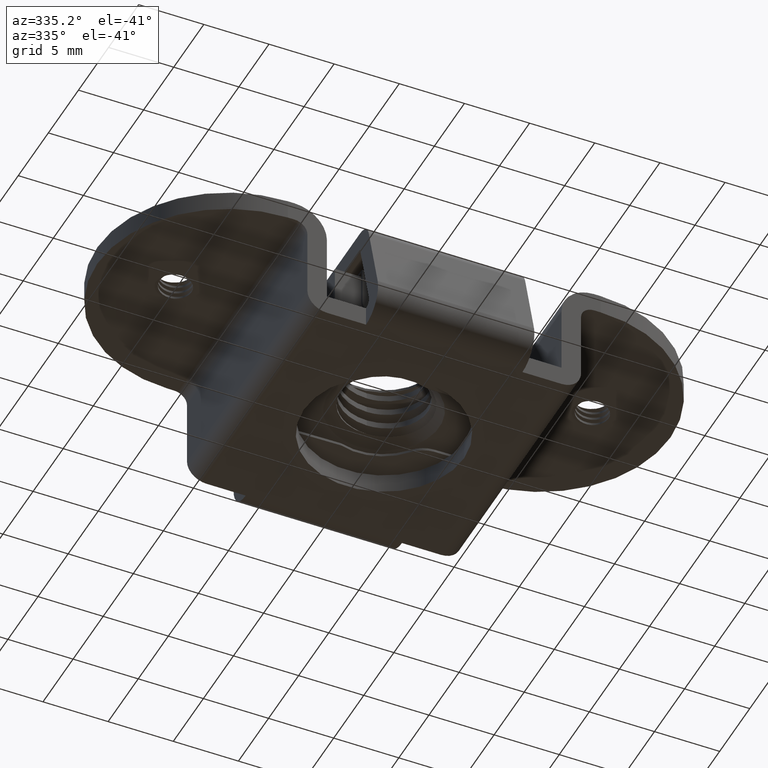
[diagram: clean part render]
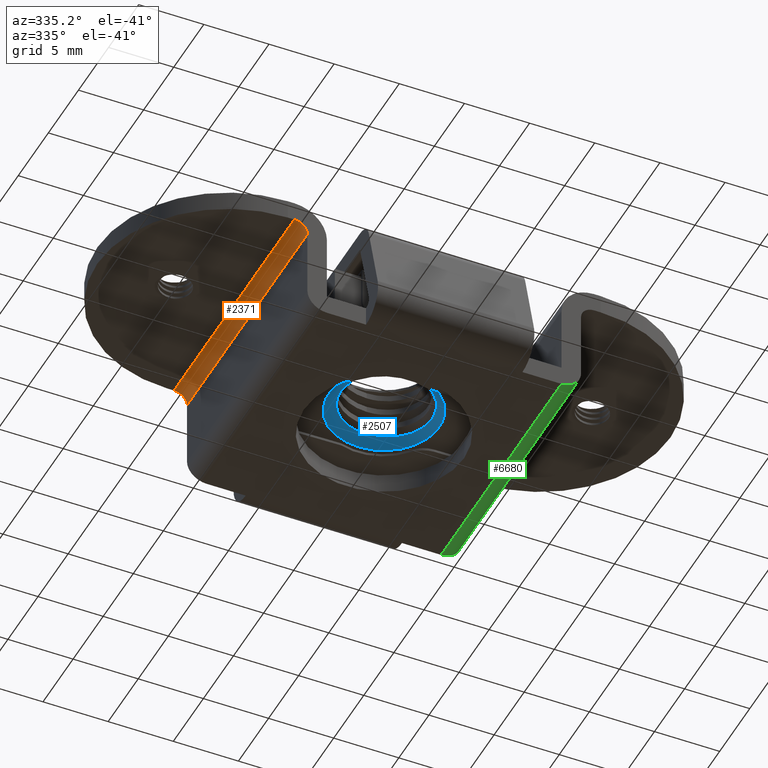
[diagram: same view with three faces highlighted in distinct colors, each labeled with its STEP entity id]
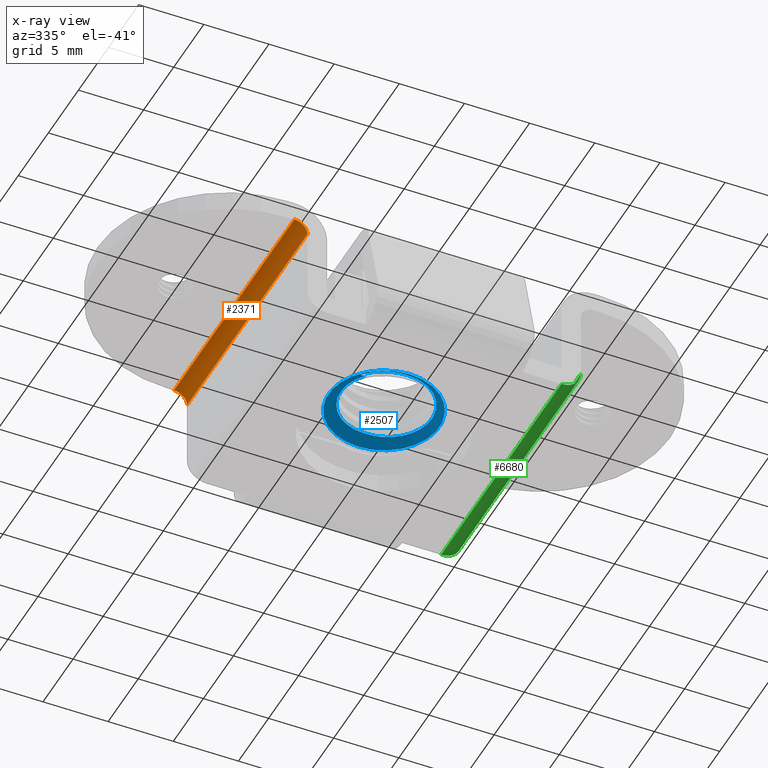
[diagram: x-ray of the same camera — body ghosted, the three highlighted faces saturated]
A machine part, auxiliary view with three faces highlighted in distinct colors.
The next image is the same camera in x-ray (body ghosted, the three faces saturated) — at least one of them is partly hidden behind the body in this view.
Their STEP definitions:

[orange] entity #2371 — the highlighted cylindrical surface (edge-blend (fillet) strip) has radius 1 mm, axis along (-0, 1, -0).
#301 = CIRCLE ( 'NONE', #5216, 1.000000000000000900 ) ;
#313 = EDGE_CURVE ( 'NONE', #5113, #4780, #1187, .T. ) ;
#360 = DIRECTION ( 'NONE',  ( 0.0000000000000000000, 1.000000000000000000, 0.0000000000000000000 ) ) ;
#366 = CARTESIAN_POINT ( 'NONE',  ( -11.50000000000000000, -10.00000000000000000, 7.699999999989020500 ) ) ;
#480 = CARTESIAN_POINT ( 'NONE',  ( -11.50000000000000000, -12.00000000000000000, 6.699999999988969900 ) ) ;
#649 = VECTOR ( 'NONE', #360, 1000.000000000000000 ) ;
#769 = ORIENTED_EDGE ( 'NONE', *, *, #1054, .T. ) ;
#979 = CYLINDRICAL_SURFACE ( 'NONE', #1028, 1.000000000000043500 ) ;
#1010 = DIRECTION ( 'NONE',  ( -0.7071055687592237000, 0.0000000000000000000, 0.7071079936117924400 ) ) ;
#1028 = AXIS2_PLACEMENT_3D ( 'NONE', #480, #6264, #1010 ) ;
#1054 = EDGE_CURVE ( 'NONE', #4780, #2256, #3636, .T. ) ;
#1187 = CIRCLE ( 'NONE', #5673, 1.000000000000000900 ) ;
#1494 = CARTESIAN_POINT ( 'NONE',  ( -11.50000000000000000, 10.00000000000000000, 6.699999999989020500 ) ) ;
#1779 = ORIENTED_EDGE ( 'NONE', *, *, #313, .T. ) ;
#1882 = DIRECTION ( 'NONE',  ( 0.0000000000000000000, -1.000000000000000000, 0.0000000000000000000 ) ) ;
#1961 = CARTESIAN_POINT ( 'NONE',  ( -11.50000000000000000, 10.00000000000000000, 7.699999999989020500 ) ) ;
#2020 = DIRECTION ( 'NONE',  ( 1.000000000000000000, 0.0000000000000000000, 0.0000000000000000000 ) ) ;
#2176 = EDGE_CURVE ( 'NONE', #5113, #4728, #3772, .T. ) ;
#2256 = VERTEX_POINT ( 'NONE', #1961 ) ;
#2319 = CARTESIAN_POINT ( 'NONE',  ( -10.50000000000000000, -10.00000000000000000, 6.699999999989020500 ) ) ;
#2371 = ADVANCED_FACE ( 'NONE', ( #6751 ), #979, .F. ) ;
#3636 = LINE ( 'NONE', #5622, #649 ) ;
#3772 = LINE ( 'NONE', #4510, #6403 ) ;
#3994 = DIRECTION ( 'NONE',  ( 0.0000000000000000000, 1.000000000000000000, 0.0000000000000000000 ) ) ;
#3998 = ORIENTED_EDGE ( 'NONE', *, *, #2176, .F. ) ;
#4510 = CARTESIAN_POINT ( 'NONE',  ( -10.50000000000000000, -10.00000000000000000, 6.699999999989020500 ) ) ;
#4728 = VERTEX_POINT ( 'NONE', #6127 ) ;
#4780 = VERTEX_POINT ( 'NONE', #366 ) ;
#5042 = CARTESIAN_POINT ( 'NONE',  ( -11.50000000000000000, -10.00000000000000000, 6.699999999989020500 ) ) ;
#5113 = VERTEX_POINT ( 'NONE', #2319 ) ;
#5176 = DIRECTION ( 'NONE',  ( 0.0000000000000000000, -1.000000000000000000, 0.0000000000000000000 ) ) ;
#5216 = AXIS2_PLACEMENT_3D ( 'NONE', #1494, #5176, #2020 ) ;
#5567 = DIRECTION ( 'NONE',  ( 1.000000000000000000, 0.0000000000000000000, 0.0000000000000000000 ) ) ;
#5622 = CARTESIAN_POINT ( 'NONE',  ( -11.50000000000000000, -10.00000000000000000, 7.699999999989020500 ) ) ;
#5673 = AXIS2_PLACEMENT_3D ( 'NONE', #5042, #1882, #5567 ) ;
#6127 = CARTESIAN_POINT ( 'NONE',  ( -10.50000000000000000, 10.00000000000000000, 6.699999999989020500 ) ) ;
#6143 = EDGE_CURVE ( 'NONE', #4728, #2256, #301, .T. ) ;
#6161 = ORIENTED_EDGE ( 'NONE', *, *, #6143, .F. ) ;
#6264 = DIRECTION ( 'NONE',  ( -6.356591984592229200E-016, 1.000000000000000000, -6.356570186226819900E-016 ) ) ;
#6403 = VECTOR ( 'NONE', #3994, 1000.000000000000000 ) ;
#6639 = EDGE_LOOP ( 'NONE', ( #6161, #3998, #1779, #769 ) ) ;
#6751 = FACE_OUTER_BOUND ( 'NONE', #6639, .T. ) ;

[blue] entity #2507 — the highlighted conical surface has half-angle 60 deg.
#16 = DIRECTION ( 'NONE',  ( -3.694335196902729800E-017, -1.827936048872755000E-032, 1.000000000000000000 ) ) ;
#146 = LINE ( 'NONE', #6083, #1396 ) ;
#164 = DIRECTION ( 'NONE',  ( 8.093464129155279800E-017, -9.337530600555819300E-017, -1.000000000000000000 ) ) ;
#244 = CARTESIAN_POINT ( 'NONE',  ( 3.389329954594360000, -1.359319542261169900, -5.202808926920019900 ) ) ;
#246 = DIRECTION ( 'NONE',  ( 4.947943138471241700E-016, -1.000000000000000000, 0.0000000000000000000 ) ) ;
#262 = CARTESIAN_POINT ( 'NONE',  ( 2.160743601985349600, 2.679436118858469700, -5.075874219056119700 ) ) ;
#350 = AXIS2_PLACEMENT_3D ( 'NONE', #5303, #2153, #5834 ) ;
#388 = CIRCLE ( 'NONE', #350, 3.323500000000001500 ) ;
#409 = CARTESIAN_POINT ( 'NONE',  ( -3.998858022470210100E-013, -3.323499999999484500, -5.015084975626664700 ) ) ;
#467 = CARTESIAN_POINT ( 'NONE',  ( -0.4300469201799530000, -3.856697417930349900, -5.333208725614819700 ) ) ;
#535 = AXIS2_PLACEMENT_3D ( 'NONE', #6551, #3413, #246 ) ;
#644 = LINE ( 'NONE', #6841, #2968 ) ;
#655 = CARTESIAN_POINT ( 'NONE',  ( 2.728086819486590200E-009, -3.854519076420110000, -5.321641373831330800 ) ) ;
#670 = EDGE_CURVE ( 'NONE', #2002, #4092, #1262, .T. ) ;
#691 = B_SPLINE_CURVE_WITH_KNOTS ( 'NONE', 3,
 ( #6002, #3367, #3913, #755, #4425, #1267, #4970, #1808, #5481, #2343, #6032, #2881, #6546, #3408, #244, #3932, #772, #4452, #1299, #4990, #1830, #5518, #2369, #6047, #2909, #6572, #3433, #262, #3962, #794, #4477, #1324, #5014 ),
 .UNSPECIFIED., .F., .F.,
 ( 4, 2, 2, 2, 2, 2, 1, 2, 2, 2, 2, 2, 2, 2, 2, 2, 4 ),
 ( 0.003340711750708470300, 0.003595339454401739700, 0.004494174318002159400, 0.005393009181602589600, 0.006291844045203020600, 0.006741261477003229600, 0.007190678908803449900, 0.007640096340603660600, 0.008089513772403871300, 0.008988348636004299700, 0.009887183499604729900, 0.01078601836320519800, 0.01123543579500540000, 0.01168485322680559900, 0.01258368809040600000, 0.01348252295400650100, 0.01438135781760690000 ),
 .UNSPECIFIED. ) ;
#755 = CARTESIAN_POINT ( 'NONE',  ( 0.5520975609783059800, -3.800347013816499900, -5.306660416608700400 ) ) ;
#772 = CARTESIAN_POINT ( 'NONE',  ( 3.547859500956310100, -0.7765497017586340300, -5.185914377821809800 ) ) ;
#794 = CARTESIAN_POINT ( 'NONE',  ( 1.365487090923160000, 3.113359114512890300, -5.051404563951909800 ) ) ;
#1120 = VERTEX_POINT ( 'NONE', #409 ) ;
#1172 = ORIENTED_EDGE ( 'NONE', *, *, #4473, .F. ) ;
#1190 = EDGE_CURVE ( 'NONE', #4758, #6023, #3619, .T. ) ;
#1209 = ORIENTED_EDGE ( 'NONE', *, *, #1780, .F. ) ;
#1213 = CIRCLE ( 'NONE', #535, 4.250000000000310000 ) ;
#1262 = CIRCLE ( 'NONE', #6587, 4.250000000000310000 ) ;
#1267 = CARTESIAN_POINT ( 'NONE',  ( 1.414397661644800000, -3.525883505566859800, -5.282786904689640300 ) ) ;
#1299 = CARTESIAN_POINT ( 'NONE',  ( 3.588814018217320300, 0.1263261445345770000, -5.162176141523219500 ) ) ;
#1318 = ORIENTED_EDGE ( 'NONE', *, *, #1780, .T. ) ;
#1324 = CARTESIAN_POINT ( 'NONE',  ( 0.4839176644917130300, 3.318603898128460500, -5.024571492250799100 ) ) ;
#1396 = VECTOR ( 'NONE', #3999, 1000.000000000000100 ) ;
#1446 = ORIENTED_EDGE ( 'NONE', *, *, #1190, .T. ) ;
#1486 = CIRCLE ( 'NONE', #3815, 3.323500000000001500 ) ;
#1550 = CARTESIAN_POINT ( 'NONE',  ( -4.001306007787992100E-013, -4.249999999999928100, -5.550000000031110000 ) ) ;
#1706 = DIRECTION ( 'NONE',  ( -1.567373681823594700E-016, 6.001915034576339700E-032, -1.000000000000000000 ) ) ;
#1780 = EDGE_CURVE ( 'NONE', #5941, #2002, #644, .T. ) ;
#1808 = CARTESIAN_POINT ( 'NONE',  ( 2.190313854242130100, -3.057449599612950500, -5.260675395690070000 ) ) ;
#1830 = CARTESIAN_POINT ( 'NONE',  ( 3.403232244967429900, 1.006492584135690000, -5.137945831787449800 ) ) ;
#1995 = AXIS2_PLACEMENT_3D ( 'NONE', #5603, #2452, #6128 ) ;
#2002 = VERTEX_POINT ( 'NONE', #6276 ) ;
#2039 = CARTESIAN_POINT ( 'NONE',  ( -3.013453921076359800, -2.630417355772470200, -5.405662432733439700 ) ) ;
#2153 = DIRECTION ( 'NONE',  ( 8.093464129155279800E-017, -9.337530600555819300E-017, -1.000000000000000000 ) ) ;
#2244 = ORIENTED_EDGE ( 'NONE', *, *, #5710, .T. ) ;
#2343 = CARTESIAN_POINT ( 'NONE',  ( 2.722671981542369700, -2.531253598782580400, -5.240841711525609600 ) ) ;
#2369 = CARTESIAN_POINT ( 'NONE',  ( 3.069514095706969800, 1.684000394254969900, -5.115780918972389700 ) ) ;
#2452 = DIRECTION ( 'NONE',  ( 0.3813759250764219800, 0.3235216426545580200, -0.8659596702538749900 ) ) ;
#2507 = ADVANCED_FACE ( 'NONE', ( #3125 ), #5757, .F. ) ;
#2577 = CARTESIAN_POINT ( 'NONE',  ( -2.573462535107900400, -3.042510549472990300, -5.390438622965569400 ) ) ;
#2614 = ORIENTED_EDGE ( 'NONE', *, *, #3253, .F. ) ;
#2652 = EDGE_CURVE ( 'NONE', #4092, #2002, #1213, .T. ) ;
#2752 = CARTESIAN_POINT ( 'NONE',  ( -5.557450399163049300E-013, 3.104183576851940200E-013, -1003.096261355975100 ) ) ;
#2804 = VERTEX_POINT ( 'NONE', #4011 ) ;
#2811 = CARTESIAN_POINT ( 'NONE',  ( 2.728086819486590200E-009, -3.854519076420110000, -5.321641373831330800 ) ) ;
#2881 = CARTESIAN_POINT ( 'NONE',  ( 2.993970363529229900, -2.166849472297790200, -5.228266497489179300 ) ) ;
#2909 = CARTESIAN_POINT ( 'NONE',  ( 2.808485354631919500, 2.051406828721930300, -5.102357487583420300 ) ) ;
#2968 = VECTOR ( 'NONE', #6308, 1000.000000000000100 ) ;
#3015 = ORIENTED_EDGE ( 'NONE', *, *, #6661, .T. ) ;
#3030 = ORIENTED_EDGE ( 'NONE', *, *, #4473, .T. ) ;
#3107 = CARTESIAN_POINT ( 'NONE',  ( -1.800361989861470000, -3.513960160990730100, -5.369260152327969500 ) ) ;
#3125 = FACE_OUTER_BOUND ( 'NONE', #3191, .T. ) ;
#3191 = EDGE_LOOP ( 'NONE', ( #2244, #6422, #1318, #3354, #1172, #3030, #4173, #1209, #2614, #3015, #1446 ) ) ;
#3202 = CARTESIAN_POINT ( 'NONE',  ( -3.999634289045015100E-013, 3.099742684753435500E-013, -5.550000000031110000 ) ) ;
#3253 = EDGE_CURVE ( 'NONE', #4885, #5941, #1486, .T. ) ;
#3346 = CARTESIAN_POINT ( 'NONE',  ( -3.932409953222305500E-013, 3.073097332162434800E-013, -5.015084975626730400 ) ) ;
#3354 = ORIENTED_EDGE ( 'NONE', *, *, #2652, .F. ) ;
#3367 = CARTESIAN_POINT ( 'NONE',  ( 0.08479934422000910700, -3.850533462729310000, -5.319351452722529800 ) ) ;
#3408 = CARTESIAN_POINT ( 'NONE',  ( 3.279259416257560100, -1.640067604991740000, -5.211340938003119500 ) ) ;
#3413 = DIRECTION ( 'NONE',  ( -3.694335196902729800E-017, -1.827936048872755000E-032, 1.000000000000000000 ) ) ;
#3433 = CARTESIAN_POINT ( 'NONE',  ( 2.395078209343450400, 2.492645634190830100, -5.084482410544879400 ) ) ;
#3619 = B_SPLINE_CURVE_WITH_KNOTS ( 'NONE', 3,
 ( #2039, #5204, #2577, #6253, #3107, #6781, #3643, #467, #4157, #655 ),
 .UNSPECIFIED., .F., .F.,
 ( 4, 2, 2, 2, 4 ),
 ( 2.507510534365309900E-017, 0.0008988348636004529200, 0.001797669727200879800, 0.002696504590801310400, 0.003340711750708470300 ),
 .UNSPECIFIED. ) ;
#3643 = CARTESIAN_POINT ( 'NONE',  ( -0.9474424657351250300, -3.793593248258770000, -5.346965255904620100 ) ) ;
#3722 = DIRECTION ( 'NONE',  ( 4.947943138471241700E-016, -1.000000000000000000, 0.0000000000000000000 ) ) ;
#3815 = AXIS2_PLACEMENT_3D ( 'NONE', #3346, #164, #3868 ) ;
#3854 = AXIS2_PLACEMENT_3D ( 'NONE', #2752, #1706, #4866 ) ;
#3868 = DIRECTION ( 'NONE',  ( -0.7556515281242297500, -0.6549738682142337600, 0.0000000000000000000 ) ) ;
#3913 = CARTESIAN_POINT ( 'NONE',  ( 0.1694482572609369900, -3.843737480715200000, -5.317058464490600000 ) ) ;
#3932 = CARTESIAN_POINT ( 'NONE',  ( 3.436152287787759700, -1.214006854374329900, -5.198510816407639000 ) ) ;
#3962 = CARTESIAN_POINT ( 'NONE',  ( 1.641995117364829900, 2.992620265482979700, -5.059280667587729300 ) ) ;
#3999 = DIRECTION ( 'NONE',  ( -2.288200187036949400E-016, -0.8660254037844383700, -0.5000000000000003300 ) ) ;
#4011 = CARTESIAN_POINT ( 'NONE',  ( 0.1798811945153569700, 3.318628482650860100, -5.015084975626730400 ) ) ;
#4031 = CARTESIAN_POINT ( 'NONE',  ( -3.013453921076359800, -2.630417355772470200, -5.405662432733439700 ) ) ;
#4092 = VERTEX_POINT ( 'NONE', #1550 ) ;
#4157 = CARTESIAN_POINT ( 'NONE',  ( -0.2145420213806400200, -3.864602664493999900, -5.327434865868969600 ) ) ;
#4173 = ORIENTED_EDGE ( 'NONE', *, *, #670, .F. ) ;
#4425 = CARTESIAN_POINT ( 'NONE',  ( 0.8507168827609149500, -3.730269016686650100, -5.298452146749600200 ) ) ;
#4452 = CARTESIAN_POINT ( 'NONE',  ( 3.586100668257890000, -0.4793596316409449700, -5.177796927824229700 ) ) ;
#4473 = EDGE_CURVE ( 'NONE', #1120, #4092, #146, .T. ) ;
#4477 = CARTESIAN_POINT ( 'NONE',  ( 0.7878437698359099800, 3.276046946285839900, -5.033903937363869700 ) ) ;
#4758 = VERTEX_POINT ( 'NONE', #4031 ) ;
#4866 = DIRECTION ( 'NONE',  ( 2.961909169916834900E-016, 1.000000000000000000, 0.0000000000000000000 ) ) ;
#4885 = VERTEX_POINT ( 'NONE', #6741 ) ;
#4970 = CARTESIAN_POINT ( 'NONE',  ( 1.685087551191740000, -3.390648654584110100, -5.275298599476729900 ) ) ;
#4990 = CARTESIAN_POINT ( 'NONE',  ( 3.552204421918050000, 0.4259760152690479900, -5.154579543387050000 ) ) ;
#5014 = CARTESIAN_POINT ( 'NONE',  ( 0.1798811945153569700, 3.318628482650860100, -5.015084975626730400 ) ) ;
#5204 = CARTESIAN_POINT ( 'NONE',  ( -2.803736965063630100, -2.850257415353569800, -5.397911321310809600 ) ) ;
#5303 = CARTESIAN_POINT ( 'NONE',  ( -3.932409953222305500E-013, 3.073097332162434800E-013, -5.015084975626730400 ) ) ;
#5481 = CARTESIAN_POINT ( 'NONE',  ( 2.417937348010499800, -2.863208622665780000, -5.252982126887819600 ) ) ;
#5518 = CARTESIAN_POINT ( 'NONE',  ( 3.289082631228430000, 1.291716308935679800, -5.129076343079149500 ) ) ;
#5603 = CARTESIAN_POINT ( 'NONE',  ( -118.6523176893590100, 127.8927240598226000, -7.570676295232311200 ) ) ;
#5679 = CIRCLE ( 'NONE', #1995, 174.3941643050009700 ) ;
#5710 = EDGE_CURVE ( 'NONE', #6023, #2804, #691, .T. ) ;
#5757 = CONICAL_SURFACE ( 'NONE', #3854, 1732.050807568875800, 1.047197551196597400 ) ;
#5834 = DIRECTION ( 'NONE',  ( -0.7556515281242297500, -0.6549738682142337600, 0.0000000000000000000 ) ) ;
#5887 = CARTESIAN_POINT ( 'NONE',  ( -3.982287427297409100E-013, 3.323500000000307000, -5.015084975626730400 ) ) ;
#5941 = VERTEX_POINT ( 'NONE', #5887 ) ;
#6002 = CARTESIAN_POINT ( 'NONE',  ( 2.728086819486590200E-009, -3.854519076420110000, -5.321641373831330800 ) ) ;
#6023 = VERTEX_POINT ( 'NONE', #2811 ) ;
#6032 = CARTESIAN_POINT ( 'NONE',  ( 2.818672509751389800, -2.412840898358320300, -5.236663071779690700 ) ) ;
#6047 = CARTESIAN_POINT ( 'NONE',  ( 2.988076989635110300, 1.809812906641350000, -5.111323965150089200 ) ) ;
#6083 = CARTESIAN_POINT ( 'NONE',  ( -3.990076717339454600E-013, 3.104183576851939700E-013, -3.096261355975060700 ) ) ;
#6128 = DIRECTION ( 'NONE',  ( 0.6659678682396560400, -0.7458364804188711800, 0.01465411030116904400 ) ) ;
#6253 = CARTESIAN_POINT ( 'NONE',  ( -2.073353768932090000, -3.373930794421160100, -5.376054693872060100 ) ) ;
#6276 = CARTESIAN_POINT ( 'NONE',  ( -3.981334528740074500E-013, 4.250000000000549800, -5.550000000031110000 ) ) ;
#6285 = EDGE_CURVE ( 'NONE', #5941, #2804, #388, .T. ) ;
#6308 = DIRECTION ( 'NONE',  ( 1.781401743938260100E-016, 0.8660254037844383700, -0.5000000000000003300 ) ) ;
#6422 = ORIENTED_EDGE ( 'NONE', *, *, #6285, .F. ) ;
#6546 = CARTESIAN_POINT ( 'NONE',  ( 3.152737513436750100, -1.912049525758940000, -5.219837741136789300 ) ) ;
#6551 = CARTESIAN_POINT ( 'NONE',  ( -3.999634289045015100E-013, 3.099742684753435500E-013, -5.550000000031110000 ) ) ;
#6572 = CARTESIAN_POINT ( 'NONE',  ( 2.709581968791290300, 2.167837620616519500, -5.097819177998109000 ) ) ;
#6587 = AXIS2_PLACEMENT_3D ( 'NONE', #3202, #16, #3722 ) ;
#6661 = EDGE_CURVE ( 'NONE', #4885, #4758, #5679, .T. ) ;
#6741 = CARTESIAN_POINT ( 'NONE',  ( -2.511407853721140200, -2.176805651009590100, -5.015084975626639800 ) ) ;
#6781 = CARTESIAN_POINT ( 'NONE',  ( -1.238419612922010200, -3.722428261044399700, -5.354616699537410300 ) ) ;
#6841 = CARTESIAN_POINT ( 'NONE',  ( -3.990076717339454600E-013, 3.104183576851939700E-013, -3.096261355975060700 ) ) ;

[green] entity #6680 — the highlighted cylindrical surface (edge-blend (fillet) strip) has radius 1.5 mm, axis along (0, 1, 0).
#127 = EDGE_CURVE ( 'NONE', #3258, #2407, #6230, .T. ) ;
#699 = DIRECTION ( 'NONE',  ( 0.0000000000000000000, 1.000000000000000000, 0.0000000000000000000 ) ) ;
#709 = CARTESIAN_POINT ( 'NONE',  ( 9.000000000000000000, -10.00000000000000000, 0.0000000000000000000 ) ) ;
#721 = CARTESIAN_POINT ( 'NONE',  ( 10.50000000000000000, -10.00000000000000000, 1.500000000000000000 ) ) ;
#881 = CARTESIAN_POINT ( 'NONE',  ( 9.000000000000000000, 10.00000000000000000, 1.500000000000000000 ) ) ;
#1136 = CIRCLE ( 'NONE', #2987, 1.500000000000000000 ) ;
#1237 = CARTESIAN_POINT ( 'NONE',  ( 10.50000000000000000, 10.00000000000000000, 1.500000000000000000 ) ) ;
#1289 = CYLINDRICAL_SURFACE ( 'NONE', #5172, 1.499999999999959600 ) ;
#1411 = DIRECTION ( 'NONE',  ( -1.387778780781445700E-014, -2.312964634635742700E-015, -1.000000000000000000 ) ) ;
#1564 = CARTESIAN_POINT ( 'NONE',  ( 9.000000000000000000, 10.00000000000000000, 0.0000000000000000000 ) ) ;
#1588 = EDGE_CURVE ( 'NONE', #2407, #6471, #1136, .T. ) ;
#1810 = CARTESIAN_POINT ( 'NONE',  ( 9.000000000000000000, -10.00000000000000000, 0.0000000000000000000 ) ) ;
#1936 = DIRECTION ( 'NONE',  ( 1.000000000000000000, 0.0000000000000000000, 1.919875283057422400E-009 ) ) ;
#2265 = DIRECTION ( 'NONE',  ( -2.528733659576070500E-029, -1.000000000000000000, -2.368475785866985100E-015 ) ) ;
#2407 = VERTEX_POINT ( 'NONE', #1564 ) ;
#2474 = CARTESIAN_POINT ( 'NONE',  ( 9.000000000000000000, -10.00000000000000000, 1.499999999999970000 ) ) ;
#2535 = VECTOR ( 'NONE', #699, 1000.000000000000000 ) ;
#2673 = ORIENTED_EDGE ( 'NONE', *, *, #4283, .F. ) ;
#2948 = AXIS2_PLACEMENT_3D ( 'NONE', #5404, #2265, #5945 ) ;
#2987 = AXIS2_PLACEMENT_3D ( 'NONE', #881, #4561, #1411 ) ;
#3007 = DIRECTION ( 'NONE',  ( 5.115605462317670300E-016, 1.000000000000000000, 6.346311729875340900E-016 ) ) ;
#3181 = ORIENTED_EDGE ( 'NONE', *, *, #127, .T. ) ;
#3258 = VERTEX_POINT ( 'NONE', #709 ) ;
#3263 = ORIENTED_EDGE ( 'NONE', *, *, #1588, .T. ) ;
#3635 = CIRCLE ( 'NONE', #2948, 1.500000000000000000 ) ;
#3991 = EDGE_LOOP ( 'NONE', ( #3263, #6480, #2673, #3181 ) ) ;
#4256 = FACE_OUTER_BOUND ( 'NONE', #3991, .T. ) ;
#4283 = EDGE_CURVE ( 'NONE', #3258, #6460, #3635, .T. ) ;
#4561 = DIRECTION ( 'NONE',  ( 2.528733659576070500E-029, -1.000000000000000000, 2.368475785866985100E-015 ) ) ;
#5172 = AXIS2_PLACEMENT_3D ( 'NONE', #2474, #3007, #1936 ) ;
#5323 = LINE ( 'NONE', #5946, #2535 ) ;
#5404 = CARTESIAN_POINT ( 'NONE',  ( 9.000000000000000000, -10.00000000000000000, 1.500000000000000000 ) ) ;
#5945 = DIRECTION ( 'NONE',  ( -1.387778780781445700E-014, 2.312964634635742700E-015, -1.000000000000000000 ) ) ;
#5946 = CARTESIAN_POINT ( 'NONE',  ( 10.50000000000000000, -10.00000000000000000, 1.500000000000000000 ) ) ;
#5977 = DIRECTION ( 'NONE',  ( 0.0000000000000000000, 1.000000000000000000, 0.0000000000000000000 ) ) ;
#6060 = VECTOR ( 'NONE', #5977, 1000.000000000000000 ) ;
#6230 = LINE ( 'NONE', #1810, #6060 ) ;
#6448 = EDGE_CURVE ( 'NONE', #6460, #6471, #5323, .T. ) ;
#6460 = VERTEX_POINT ( 'NONE', #721 ) ;
#6471 = VERTEX_POINT ( 'NONE', #1237 ) ;
#6480 = ORIENTED_EDGE ( 'NONE', *, *, #6448, .F. ) ;
#6680 = ADVANCED_FACE ( 'NONE', ( #4256 ), #1289, .T. ) ;